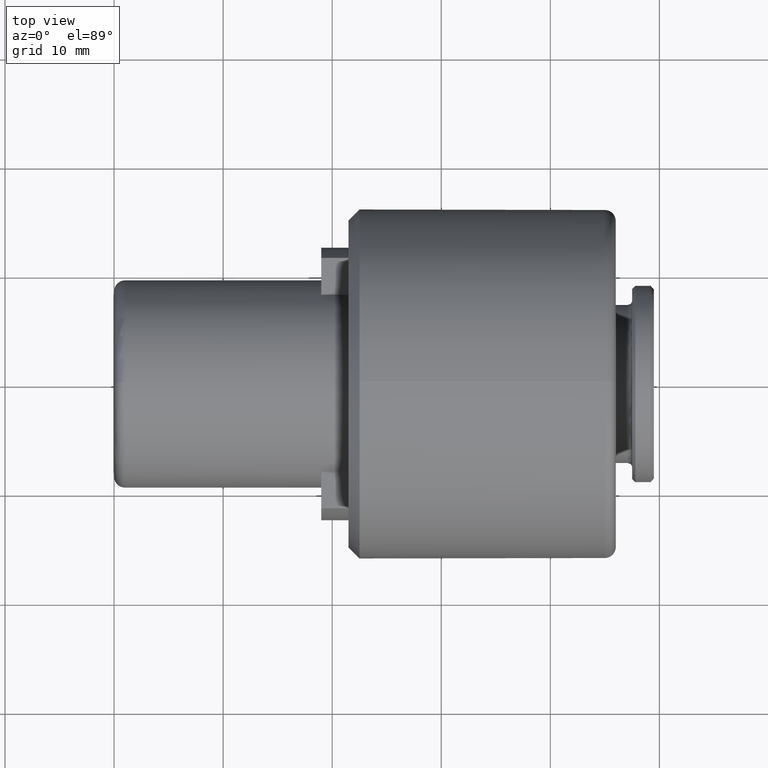
[diagram: clean part render]
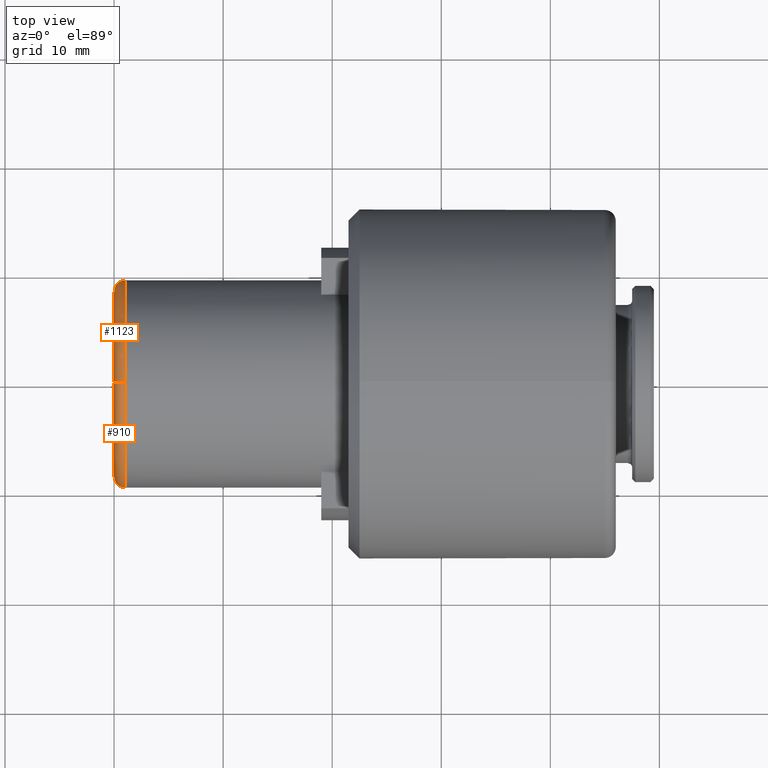
[diagram: same view with one multi-face feature highlighted, each face labeled with its STEP entity id]
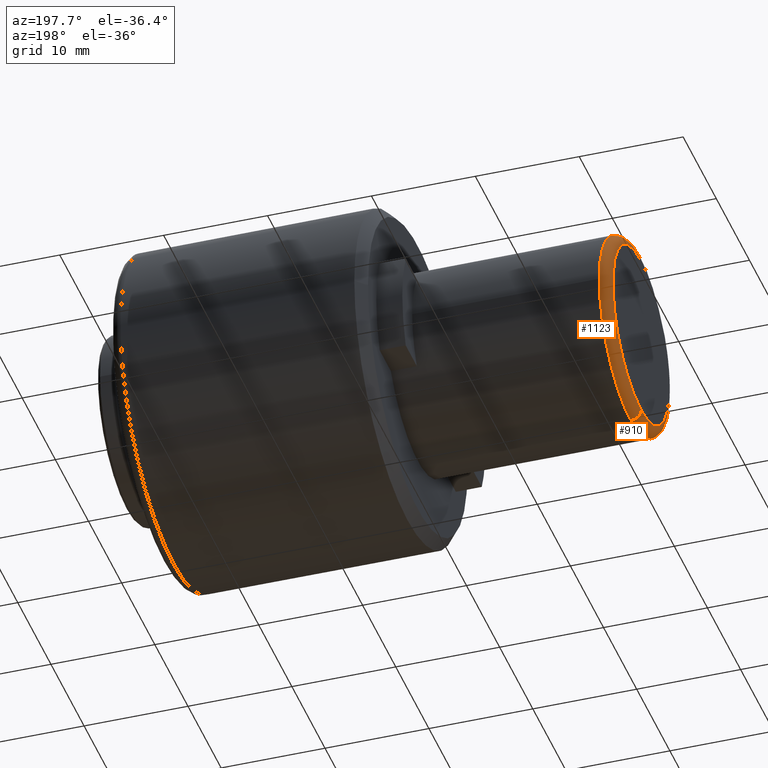
[diagram: same view with one multi-face feature highlighted, each face labeled with its STEP entity id]
A machine part, top view. The highlighted faces form ONE feature: a constant-radius fillet chain: 2 tangent blend faces with common blend radius 1 mm. The faces share edges in the B-rep.
A second angle (auxiliary view) of the same feature is appended — it is thin or edge-on in the first view.
Their STEP definitions:
[1] entity #1123 (Torus):
#22 = DIRECTION ( 'NONE',  ( 0.0000000000000000000, 0.0000000000000000000, -1.000000000000000000 ) ) ;
#33 = CARTESIAN_POINT ( 'NONE',  ( 1.000000000000000900, -2.579936199496809100E-015, 9.500000000000001800 ) ) ;
#57 = ORIENTED_EDGE ( 'NONE', *, *, #558, .F. ) ;
#108 = DIRECTION ( 'NONE',  ( 1.000000000000000000, -0.0000000000000000000, 0.0000000000000000000 ) ) ;
#131 = DIRECTION ( 'NONE',  ( 0.0000000000000000000, 1.224646799147353500E-016, 1.000000000000000000 ) ) ;
#144 = EDGE_CURVE ( 'NONE', #249, #850, #404, .T. ) ;
#190 = DIRECTION ( 'NONE',  ( 0.0000000000000000000, 1.000000000000000000, -1.224646799147353200E-016 ) ) ;
#201 = CARTESIAN_POINT ( 'NONE',  ( 1.000000000000000900, -3.743350658686794500E-015, -9.500000000000001800 ) ) ;
#207 = CARTESIAN_POINT ( 'NONE',  ( 0.0000000000000000000, -3.743350658686794500E-015, -8.500000000000000000 ) ) ;
#247 = CIRCLE ( 'NONE', #340, 9.500000000000000000 ) ;
#249 = VERTEX_POINT ( 'NONE', #207 ) ;
#266 = CARTESIAN_POINT ( 'NONE',  ( 0.0000000000000000000, -2.641168539454176600E-015, 8.500000000000000000 ) ) ;
#340 = AXIS2_PLACEMENT_3D ( 'NONE', #471, #491, #511 ) ;
#404 = CIRCLE ( 'NONE', #447, 1.000000000000000900 ) ;
#424 = EDGE_CURVE ( 'NONE', #541, #249, #769, .T. ) ;
#447 = AXIS2_PLACEMENT_3D ( 'NONE', #638, #1015, #872 ) ;
#471 = CARTESIAN_POINT ( 'NONE',  ( 1.000000000000000900, -3.743350658686794500E-015, 0.0000000000000000000 ) ) ;
#491 = DIRECTION ( 'NONE',  ( 1.000000000000000000, -0.0000000000000000000, 0.0000000000000000000 ) ) ;
#511 = DIRECTION ( 'NONE',  ( 0.0000000000000000000, 0.0000000000000000000, -1.000000000000000000 ) ) ;
#537 = ORIENTED_EDGE ( 'NONE', *, *, #424, .F. ) ;
#541 = VERTEX_POINT ( 'NONE', #266 ) ;
#558 = EDGE_CURVE ( 'NONE', #1036, #1120, #572, .T. ) ;
#572 = CIRCLE ( 'NONE', #651, 9.500000000000000000 ) ;
#577 = DIRECTION ( 'NONE',  ( 1.000000000000000000, -0.0000000000000000000, 0.0000000000000000000 ) ) ;
#593 = TOROIDAL_SURFACE ( 'NONE', #1200, 8.500000000000000000, 1.000000000000000000 ) ;
#627 = ORIENTED_EDGE ( 'NONE', *, *, #633, .T. ) ;
#633 = EDGE_CURVE ( 'NONE', #541, #1120, #881, .T. ) ;
#638 = CARTESIAN_POINT ( 'NONE',  ( 1.000000000000000900, -3.743350658686794500E-015, -8.500000000000000000 ) ) ;
#644 = CARTESIAN_POINT ( 'NONE',  ( 1.000000000000000900, 9.499999999999996400, 1.163414459189985500E-015 ) ) ;
#651 = AXIS2_PLACEMENT_3D ( 'NONE', #1172, #108, #1170 ) ;
#724 = EDGE_LOOP ( 'NONE', ( #537, #627, #57, #1198, #911 ) ) ;
#769 = CIRCLE ( 'NONE', #1209, 8.500000000000000000 ) ;
#804 = FACE_OUTER_BOUND ( 'NONE', #724, .T. ) ;
#850 = VERTEX_POINT ( 'NONE', #201 ) ;
#872 = DIRECTION ( 'NONE',  ( 0.0000000000000000000, 0.0000000000000000000, -1.000000000000000000 ) ) ;
#881 = CIRCLE ( 'NONE', #970, 1.000000000000000900 ) ;
#911 = ORIENTED_EDGE ( 'NONE', *, *, #144, .F. ) ;
#952 = CARTESIAN_POINT ( 'NONE',  ( 1.000000000000000900, -3.743350658686794500E-015, 0.0000000000000000000 ) ) ;
#960 = CARTESIAN_POINT ( 'NONE',  ( 1.000000000000000900, -2.702400879411544200E-015, 8.500000000000000000 ) ) ;
#970 = AXIS2_PLACEMENT_3D ( 'NONE', #960, #190, #131 ) ;
#987 = CARTESIAN_POINT ( 'NONE',  ( 0.0000000000000000000, -3.743350658686794500E-015, 0.0000000000000000000 ) ) ;
#1015 = DIRECTION ( 'NONE',  ( 0.0000000000000000000, -1.000000000000000000, -0.0000000000000000000 ) ) ;
#1036 = VERTEX_POINT ( 'NONE', #644 ) ;
#1065 = DIRECTION ( 'NONE',  ( -1.000000000000000000, 0.0000000000000000000, -0.0000000000000000000 ) ) ;
#1084 = DIRECTION ( 'NONE',  ( 0.0000000000000000000, 0.0000000000000000000, -1.000000000000000000 ) ) ;
#1120 = VERTEX_POINT ( 'NONE', #33 ) ;
#1123 = ADVANCED_FACE ( 'NONE', ( #804 ), #593, .T. ) ;
#1170 = DIRECTION ( 'NONE',  ( 0.0000000000000000000, 0.0000000000000000000, -1.000000000000000000 ) ) ;
#1172 = CARTESIAN_POINT ( 'NONE',  ( 1.000000000000000900, -3.743350658686794500E-015, 0.0000000000000000000 ) ) ;
#1190 = EDGE_CURVE ( 'NONE', #850, #1036, #247, .T. ) ;
#1198 = ORIENTED_EDGE ( 'NONE', *, *, #1190, .F. ) ;
#1200 = AXIS2_PLACEMENT_3D ( 'NONE', #952, #577, #1084 ) ;
#1209 = AXIS2_PLACEMENT_3D ( 'NONE', #987, #1065, #22 ) ;
[2] entity #910 (Torus):
#25 = EDGE_CURVE ( 'NONE', #58, #850, #1169, .T. ) ;
#33 = CARTESIAN_POINT ( 'NONE',  ( 1.000000000000000900, -2.579936199496809100E-015, 9.500000000000001800 ) ) ;
#35 = DIRECTION ( 'NONE',  ( 1.000000000000000000, -0.0000000000000000000, 0.0000000000000000000 ) ) ;
#58 = VERTEX_POINT ( 'NONE', #147 ) ;
#64 = EDGE_CURVE ( 'NONE', #249, #541, #159, .T. ) ;
#131 = DIRECTION ( 'NONE',  ( 0.0000000000000000000, 1.224646799147353500E-016, 1.000000000000000000 ) ) ;
#144 = EDGE_CURVE ( 'NONE', #249, #850, #404, .T. ) ;
#147 = CARTESIAN_POINT ( 'NONE',  ( 1.000000000000000900, -9.500000000000003600, 0.0000000000000000000 ) ) ;
#159 = CIRCLE ( 'NONE', #1196, 8.500000000000000000 ) ;
#190 = DIRECTION ( 'NONE',  ( 0.0000000000000000000, 1.000000000000000000, -1.224646799147353200E-016 ) ) ;
#201 = CARTESIAN_POINT ( 'NONE',  ( 1.000000000000000900, -3.743350658686794500E-015, -9.500000000000001800 ) ) ;
#207 = CARTESIAN_POINT ( 'NONE',  ( 0.0000000000000000000, -3.743350658686794500E-015, -8.500000000000000000 ) ) ;
#249 = VERTEX_POINT ( 'NONE', #207 ) ;
#266 = CARTESIAN_POINT ( 'NONE',  ( 0.0000000000000000000, -2.641168539454176600E-015, 8.500000000000000000 ) ) ;
#337 = ORIENTED_EDGE ( 'NONE', *, *, #633, .F. ) ;
#347 = ORIENTED_EDGE ( 'NONE', *, *, #25, .F. ) ;
#392 = CARTESIAN_POINT ( 'NONE',  ( 1.000000000000000900, -3.743350658686794500E-015, 0.0000000000000000000 ) ) ;
#404 = CIRCLE ( 'NONE', #447, 1.000000000000000900 ) ;
#447 = AXIS2_PLACEMENT_3D ( 'NONE', #638, #1015, #872 ) ;
#502 = ORIENTED_EDGE ( 'NONE', *, *, #64, .F. ) ;
#541 = VERTEX_POINT ( 'NONE', #266 ) ;
#583 = DIRECTION ( 'NONE',  ( 1.000000000000000000, -0.0000000000000000000, 0.0000000000000000000 ) ) ;
#633 = EDGE_CURVE ( 'NONE', #541, #1120, #881, .T. ) ;
#638 = CARTESIAN_POINT ( 'NONE',  ( 1.000000000000000900, -3.743350658686794500E-015, -8.500000000000000000 ) ) ;
#665 = DIRECTION ( 'NONE',  ( 0.0000000000000000000, 0.0000000000000000000, -1.000000000000000000 ) ) ;
#708 = EDGE_LOOP ( 'NONE', ( #337, #502, #753, #347, #1080 ) ) ;
#710 = DIRECTION ( 'NONE',  ( 0.0000000000000000000, 0.0000000000000000000, -1.000000000000000000 ) ) ;
#733 = AXIS2_PLACEMENT_3D ( 'NONE', #392, #35, #1076 ) ;
#753 = ORIENTED_EDGE ( 'NONE', *, *, #144, .T. ) ;
#802 = DIRECTION ( 'NONE',  ( -1.000000000000000000, 0.0000000000000000000, -0.0000000000000000000 ) ) ;
#819 = DIRECTION ( 'NONE',  ( 1.000000000000000000, -0.0000000000000000000, 0.0000000000000000000 ) ) ;
#827 = DIRECTION ( 'NONE',  ( 0.0000000000000000000, 0.0000000000000000000, -1.000000000000000000 ) ) ;
#843 = CARTESIAN_POINT ( 'NONE',  ( 0.0000000000000000000, -3.743350658686794500E-015, 0.0000000000000000000 ) ) ;
#850 = VERTEX_POINT ( 'NONE', #201 ) ;
#869 = CARTESIAN_POINT ( 'NONE',  ( 1.000000000000000900, -3.743350658686794500E-015, 0.0000000000000000000 ) ) ;
#872 = DIRECTION ( 'NONE',  ( 0.0000000000000000000, 0.0000000000000000000, -1.000000000000000000 ) ) ;
#881 = CIRCLE ( 'NONE', #970, 1.000000000000000900 ) ;
#910 = ADVANCED_FACE ( 'NONE', ( #1119 ), #971, .T. ) ;
#960 = CARTESIAN_POINT ( 'NONE',  ( 1.000000000000000900, -2.702400879411544200E-015, 8.500000000000000000 ) ) ;
#967 = CARTESIAN_POINT ( 'NONE',  ( 1.000000000000000900, -3.743350658686794500E-015, 0.0000000000000000000 ) ) ;
#970 = AXIS2_PLACEMENT_3D ( 'NONE', #960, #190, #131 ) ;
#971 = TOROIDAL_SURFACE ( 'NONE', #1168, 8.500000000000000000, 1.000000000000000000 ) ;
#1015 = DIRECTION ( 'NONE',  ( 0.0000000000000000000, -1.000000000000000000, -0.0000000000000000000 ) ) ;
#1064 = AXIS2_PLACEMENT_3D ( 'NONE', #869, #583, #665 ) ;
#1076 = DIRECTION ( 'NONE',  ( 0.0000000000000000000, 0.0000000000000000000, -1.000000000000000000 ) ) ;
#1080 = ORIENTED_EDGE ( 'NONE', *, *, #1092, .F. ) ;
#1092 = EDGE_CURVE ( 'NONE', #1120, #58, #1094, .T. ) ;
#1094 = CIRCLE ( 'NONE', #733, 9.500000000000000000 ) ;
#1119 = FACE_OUTER_BOUND ( 'NONE', #708, .T. ) ;
#1120 = VERTEX_POINT ( 'NONE', #33 ) ;
#1168 = AXIS2_PLACEMENT_3D ( 'NONE', #967, #819, #827 ) ;
#1169 = CIRCLE ( 'NONE', #1064, 9.500000000000000000 ) ;
#1196 = AXIS2_PLACEMENT_3D ( 'NONE', #843, #802, #710 ) ;